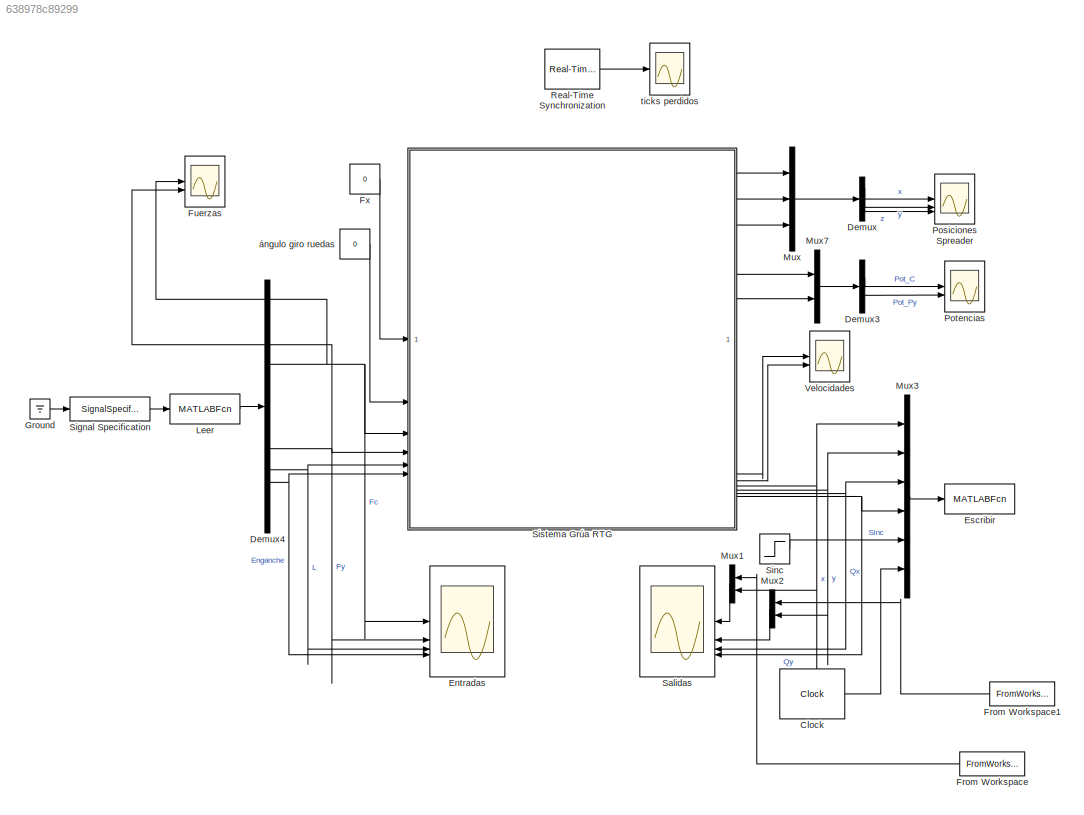
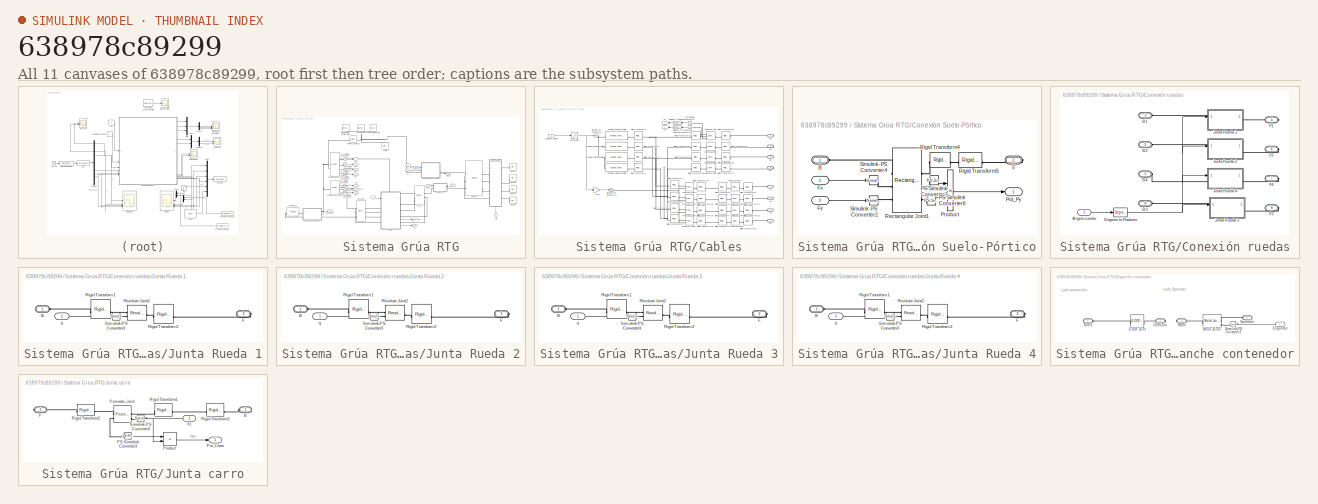
[diagram: thumbnail index - all 11 canvases of the model, root first then tree order]
MODEL slx_638978c89299
KIND model
CONFIG AbsTol = 1e-3
CONFIG EnableMultiTasking = on
CONFIG FixedStep = 0.1
CONFIG MaxStep = auto
CONFIG MinStep = auto
CONFIG RelTol = 1e-3
CONFIG SampleTimeConstraint = Unconstrained
CONFIG SolverName = FixedStepAuto
CONFIG StartTime = 0.0
CONFIG StopTime = 250
BLOCK [Clock] Clock
  Decimation = 1
  DisplayTime = on
BLOCK [Demux] Demux
  Outputs = 3
BLOCK [Demux] Demux3
  Outputs = 2
BLOCK [Demux] Demux4
BLOCK [Scope] Entradas
  Floating = off
  NameLocation = right
  NumInputPorts = 4
  ScopeSpecificationString = Simulink.scopes.TimeScopeBlockCfg('CurrentConfiguration', extmgr.ConfigurationSet(extmgr.Configuration('Core','General UI',true,'FigureColor',[1 1 1]),extmgr.Configuration('Core','Source UI',true),extmgr.Configuration('Sources','WiredSimulink',true,'DataLoggingVariableName','ScopeData1'),extmgr.Configuration('Visuals','Time Domain',true,'SerializedDisplays',{struct('MinYLimReal','-30741.25','MaxYL...<+4185ch>
BLOCK [MATLABFcn] Escribir
  MATLABFcn = EscribirDatos
  OutputDimensions = 0
BLOCK [FromWorkspace] From Workspace
  NameLocation = top
  VariableName = RefXvec
BLOCK [FromWorkspace] From Workspace1
  NameLocation = top
  VariableName = RefYvec
BLOCK [Scope] Fuerzas
  Floating = off
  NameLocation = right
  NumInputPorts = 2
  ScopeSpecificationString = Simulink.scopes.TimeScopeBlockCfg('CurrentConfiguration', extmgr.ConfigurationSet(extmgr.Configuration('Core','General UI',true,'FigureColor',[1 1 1]),extmgr.Configuration('Core','Source UI',true),extmgr.Configuration('Sources','WiredSimulink',true,'DataLoggingVariableName','ScopeData1'),extmgr.Configuration('Visuals','Time Domain',true,'SerializedDisplays',{struct('MinYLimReal','-4025.00000','Max...<+2523ch>
BLOCK [Constant] Fx
  Value = 0
BLOCK [Ground] Ground
BLOCK [MATLABFcn] Leer
  MATLABFcn = LeerDatos()
BLOCK [Mux] Mux
  DisplayOption = bar
  Inputs = 3
BLOCK [Mux] Mux1
  DisplayOption = bar
  Inputs = 2
  NameLocation = top
BLOCK [Mux] Mux2
  DisplayOption = bar
  Inputs = 2
  NameLocation = top
BLOCK [Mux] Mux3
  DisplayOption = bar
  Inputs = 6
BLOCK [Mux] Mux7
  DisplayOption = bar
  Inputs = 2
BLOCK [Scope] Posiciones Spreader
  Floating = off
  NameLocation = right
  NumInputPorts = 3
  ScopeSpecificationString = Simulink.scopes.TimeScopeBlockCfg('CurrentConfiguration', extmgr.ConfigurationSet(extmgr.Configuration('Core','General UI',true,'FigureColor',[1 1 1]),extmgr.Configuration('Core','Source UI',true),extmgr.Configuration('Sources','WiredSimulink',true,'DataLoggingVariableName','ScopeData2'),extmgr.Configuration('Visuals','Time Domain',true,'SerializedDisplays',{struct('MinYLimReal','-1.89451','MaxYLi...<+3879ch>
BLOCK [Scope] Potencias
  Floating = off
  NameLocation = right
  NumInputPorts = 2
  ScopeSpecificationString = Simulink.scopes.TimeScopeBlockCfg('CurrentConfiguration', extmgr.ConfigurationSet(extmgr.Configuration('Core','General UI',true,'FigureColor',[1 1 1]),extmgr.Configuration('Core','Source UI',true),extmgr.Configuration('Sources','WiredSimulink',true,'DataLoggingVariableName','ScopeData1'),extmgr.Configuration('Visuals','Time Domain',true,'SerializedDisplays',{struct('MinYLimReal','-4171.48639','Max...<+2798ch>
BLOCK [Reference] Real-Time Synchronization  REF=sldrtlib/Real-Time
Synchronization
  Commented = on
  SourceBlock = sldrtlib/Real-Time\nSynchronization
  SourceType = Simulink Desktop Real-Time Synchronization
BLOCK [Scope] Salidas
  Floating = off
  NameLocation = left
  NumInputPorts = 4
  ScopeSpecificationString = Simulink.scopes.TimeScopeBlockCfg('CurrentConfiguration', extmgr.ConfigurationSet(extmgr.Configuration('Core','General UI',true,'FigureColor',[1 1 1]),extmgr.Configuration('Core','Source UI',true),extmgr.Configuration('Sources','WiredSimulink',true,'DataLoggingVariableName','ScopeData1'),extmgr.Configuration('Visuals','Time Domain',true,'SerializedDisplays',{struct('MinYLimReal','-1.85623','MaxYLi...<+4261ch>
BLOCK [SignalSpecification] Signal Specification
  SampleTime = 0.1
BLOCK [Step] Sinc
  SampleTime = 0
  Time = 0
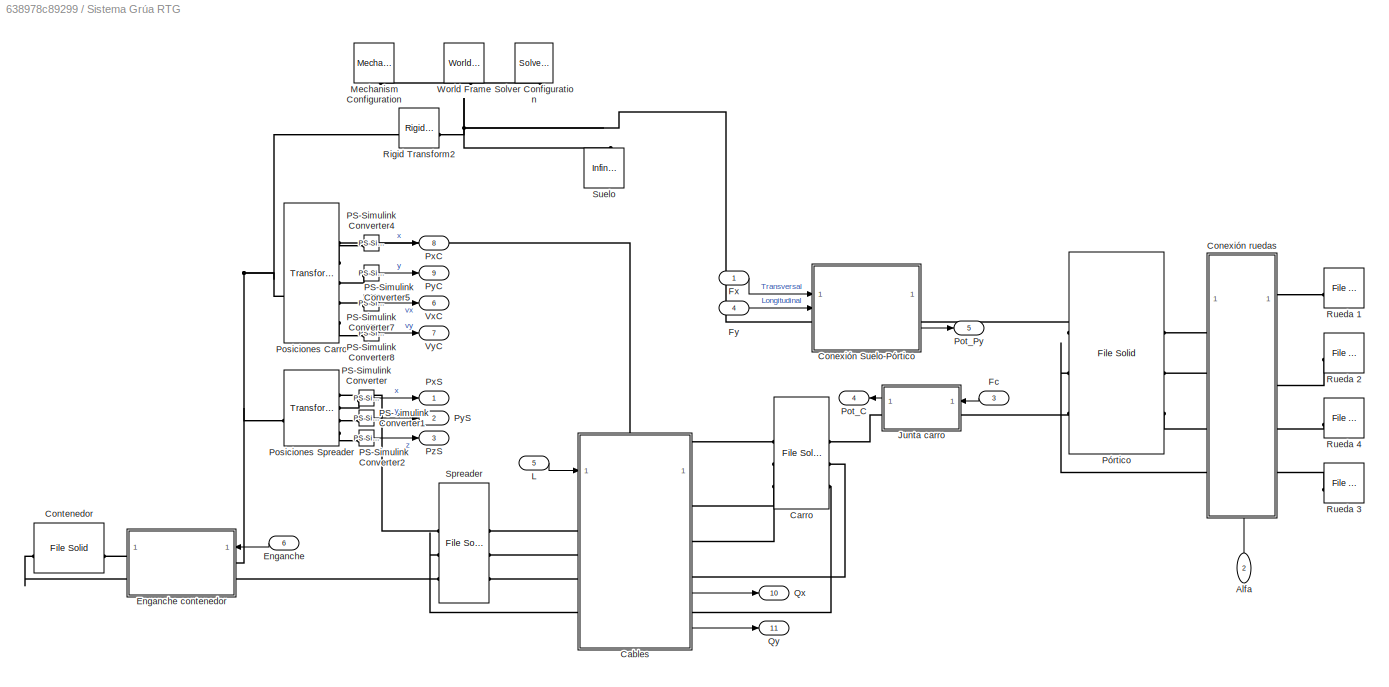
BLOCK [SubSystem] Sistema Grúa RTG
  NameLocation = top
BLOCK [Inport] Sistema Grúa RTG/Alfa
  NameLocation = right
  Port = 2
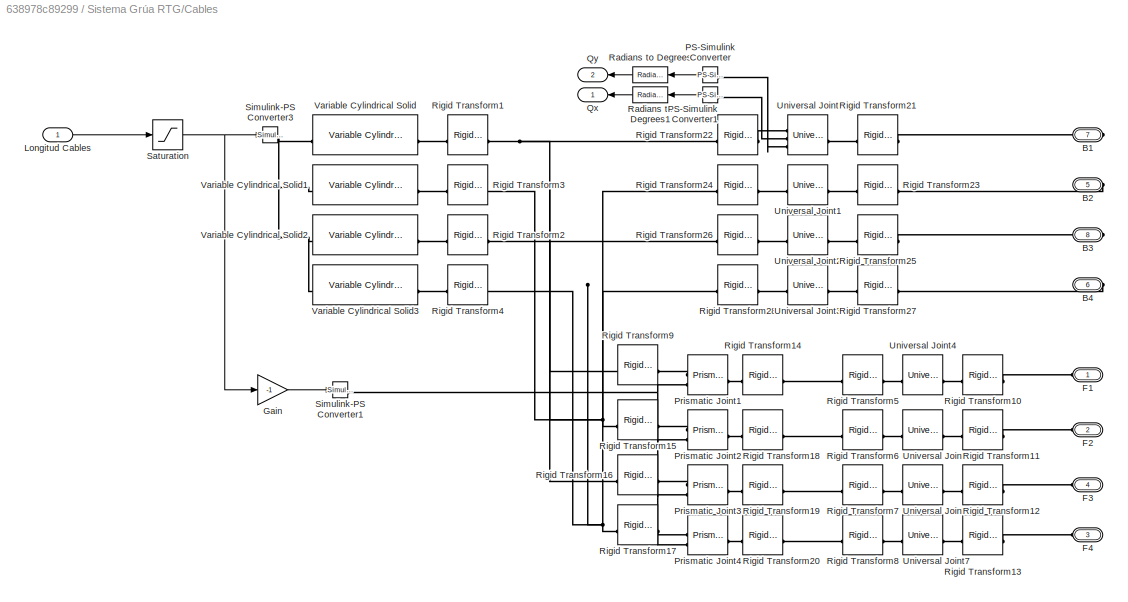
BLOCK [SubSystem] Sistema Grúa RTG/Cables
  PortSchema = {"entries":[{"content":{"sides":[{"content":{"connectorIds":["In1","LConn1","LConn2","LConn3","LConn4"]},"type":"ConnectorPlacement.EquallySpacedRectSide","uuid":"ec984c7e-e1d1-4181-a563-1208227983a4"},{"content":{"connectorIds":["RConn1","RConn2","RConn3","RConn4","Out1","Out2"],"side":"RIGHT"},"type":"ConnectorPlacement.EquallySpacedRectSide","uuid":"cac8f856-ea24-476a-83a0-5dfdb24fe635"},{"cont...<+319ch>
BLOCK [PMIOPort] Sistema Grúa RTG/Cables/B1
  Port = 7
  Side = Right
BLOCK [PMIOPort] Sistema Grúa RTG/Cables/B2
  Port = 5
  Side = Right
BLOCK [PMIOPort] Sistema Grúa RTG/Cables/B3
  Port = 8
  Side = Right
BLOCK [PMIOPort] Sistema Grúa RTG/Cables/B4
  Port = 6
  Side = Right
BLOCK [PMIOPort] Sistema Grúa RTG/Cables/F1
  Side = Left
BLOCK [PMIOPort] Sistema Grúa RTG/Cables/F2
  Port = 2
  Side = Left
BLOCK [PMIOPort] Sistema Grúa RTG/Cables/F3
  Port = 4
  Side = Left
BLOCK [PMIOPort] Sistema Grúa RTG/Cables/F4
  Port = 3
  Side = Left
BLOCK [Gain] Sistema Grúa RTG/Cables/Gain
  Gain = -1
BLOCK [Inport] Sistema Grúa RTG/Cables/Longitud Cables
BLOCK [Reference] Sistema Grúa RTG/Cables/PS-Simulink Converter  REF=nesl_utility/PS-Simulink
Converter
  NameLocation = top
  SourceBlock = nesl_utility/PS-Simulink\nConverter
  SourceType = PS-Simulink\nConverter
BLOCK [Reference] Sistema Grúa RTG/Cables/PS-Simulink Converter1  REF=nesl_utility/PS-Simulink
Converter
  NameLocation = top
  SourceBlock = nesl_utility/PS-Simulink\nConverter
  SourceType = PS-Simulink\nConverter
BLOCK [Reference] Sistema Grúa RTG/Cables/Prismatic Joint1  REF=sm_lib/Joints/Prismatic
Joint
  SourceBlock = sm_lib/Joints/Prismatic\nJoint
  SourceType = Prismatic\nJoint
BLOCK [Reference] Sistema Grúa RTG/Cables/Prismatic Joint2  REF=sm_lib/Joints/Prismatic
Joint
  SourceBlock = sm_lib/Joints/Prismatic\nJoint
  SourceType = Prismatic\nJoint
BLOCK [Reference] Sistema Grúa RTG/Cables/Prismatic Joint3  REF=sm_lib/Joints/Prismatic
Joint
  SourceBlock = sm_lib/Joints/Prismatic\nJoint
  SourceType = Prismatic\nJoint
BLOCK [Reference] Sistema Grúa RTG/Cables/Prismatic Joint4  REF=sm_lib/Joints/Prismatic
Joint
  SourceBlock = sm_lib/Joints/Prismatic\nJoint
  SourceType = Prismatic\nJoint
BLOCK [Outport] Sistema Grúa RTG/Cables/Qx
  NameLocation = left
BLOCK [Outport] Sistema Grúa RTG/Cables/Qy
  NameLocation = left
  Port = 2
BLOCK [Reference] Sistema Grúa RTG/Cables/Radians to Degrees  REF=simulink_extras/Transformations/Radians
to Degrees
  NameLocation = top
  SourceBlock = simulink_extras/Transformations/Radians\nto Degrees
  SourceType = RadiansToDegrees
BLOCK [Reference] Sistema Grúa RTG/Cables/Radians to Degrees1  REF=simulink_extras/Transformations/Radians
to Degrees
  NameLocation = top
  SourceBlock = simulink_extras/Transformations/Radians\nto Degrees
  SourceType = RadiansToDegrees
BLOCK [Reference] Sistema Grúa RTG/Cables/Rigid Transform1  REF=sm_lib/Frames and
Transforms/Rigid
Transform
  SourceBlock = sm_lib/Frames and\nTransforms/Rigid\nTransform
  SourceType = Rigid\nTransform
BLOCK [Reference] Sistema Grúa RTG/Cables/Rigid Transform10  REF=sm_lib/Frames and
Transforms/Rigid
Transform
  SourceBlock = sm_lib/Frames and\nTransforms/Rigid\nTransform
  SourceType = Rigid\nTransform
BLOCK [Reference] Sistema Grúa RTG/Cables/Rigid Transform11  REF=sm_lib/Frames and
Transforms/Rigid
Transform
  SourceBlock = sm_lib/Frames and\nTransforms/Rigid\nTransform
  SourceType = Rigid\nTransform
BLOCK [Reference] Sistema Grúa RTG/Cables/Rigid Transform12  REF=sm_lib/Frames and
Transforms/Rigid
Transform
  SourceBlock = sm_lib/Frames and\nTransforms/Rigid\nTransform
  SourceType = Rigid\nTransform
BLOCK [Reference] Sistema Grúa RTG/Cables/Rigid Transform13  REF=sm_lib/Frames and
Transforms/Rigid
Transform
  SourceBlock = sm_lib/Frames and\nTransforms/Rigid\nTransform
  SourceType = Rigid\nTransform
BLOCK [Reference] Sistema Grúa RTG/Cables/Rigid Transform14  REF=sm_lib/Frames and
Transforms/Rigid
Transform
  SourceBlock = sm_lib/Frames and\nTransforms/Rigid\nTransform
  SourceType = Rigid\nTransform
BLOCK [Reference] Sistema Grúa RTG/Cables/Rigid Transform15  REF=sm_lib/Frames and
Transforms/Rigid
Transform
  SourceBlock = sm_lib/Frames and\nTransforms/Rigid\nTransform
  SourceType = Rigid\nTransform
BLOCK [Reference] Sistema Grúa RTG/Cables/Rigid Transform16  REF=sm_lib/Frames and
Transforms/Rigid
Transform
  SourceBlock = sm_lib/Frames and\nTransforms/Rigid\nTransform
  SourceType = Rigid\nTransform
BLOCK [Reference] Sistema Grúa RTG/Cables/Rigid Transform17  REF=sm_lib/Frames and
Transforms/Rigid
Transform
  SourceBlock = sm_lib/Frames and\nTransforms/Rigid\nTransform
  SourceType = Rigid\nTransform
BLOCK [Reference] Sistema Grúa RTG/Cables/Rigid Transform18  REF=sm_lib/Frames and
Transforms/Rigid
Transform
  SourceBlock = sm_lib/Frames and\nTransforms/Rigid\nTransform
  SourceType = Rigid\nTransform
BLOCK [Reference] Sistema Grúa RTG/Cables/Rigid Transform19  REF=sm_lib/Frames and
Transforms/Rigid
Transform
  SourceBlock = sm_lib/Frames and\nTransforms/Rigid\nTransform
  SourceType = Rigid\nTransform
BLOCK [Reference] Sistema Grúa RTG/Cables/Rigid Transform2  REF=sm_lib/Frames and
Transforms/Rigid
Transform
  SourceBlock = sm_lib/Frames and\nTransforms/Rigid\nTransform
  SourceType = Rigid\nTransform
BLOCK [Reference] Sistema Grúa RTG/Cables/Rigid Transform20  REF=sm_lib/Frames and
Transforms/Rigid
Transform
  SourceBlock = sm_lib/Frames and\nTransforms/Rigid\nTransform
  SourceType = Rigid\nTransform
BLOCK [Reference] Sistema Grúa RTG/Cables/Rigid Transform21  REF=sm_lib/Frames and
Transforms/Rigid
Transform
  NameLocation = top
  SourceBlock = sm_lib/Frames and\nTransforms/Rigid\nTransform
  SourceType = Rigid\nTransform
BLOCK [Reference] Sistema Grúa RTG/Cables/Rigid Transform22  REF=sm_lib/Frames and
Transforms/Rigid
Transform
  NameLocation = top
  SourceBlock = sm_lib/Frames and\nTransforms/Rigid\nTransform
  SourceType = Rigid\nTransform
BLOCK [Reference] Sistema Grúa RTG/Cables/Rigid Transform23  REF=sm_lib/Frames and
Transforms/Rigid
Transform
  NameLocation = top
  SourceBlock = sm_lib/Frames and\nTransforms/Rigid\nTransform
  SourceType = Rigid\nTransform
BLOCK [Reference] Sistema Grúa RTG/Cables/Rigid Transform24  REF=sm_lib/Frames and
Transforms/Rigid
Transform
  NameLocation = top
  SourceBlock = sm_lib/Frames and\nTransforms/Rigid\nTransform
  SourceType = Rigid\nTransform
BLOCK [Reference] Sistema Grúa RTG/Cables/Rigid Transform25  REF=sm_lib/Frames and
Transforms/Rigid
Transform
  NameLocation = left
  SourceBlock = sm_lib/Frames and\nTransforms/Rigid\nTransform
  SourceType = Rigid\nTransform
BLOCK [Reference] Sistema Grúa RTG/Cables/Rigid Transform26  REF=sm_lib/Frames and
Transforms/Rigid
Transform
  NameLocation = top
  SourceBlock = sm_lib/Frames and\nTransforms/Rigid\nTransform
  SourceType = Rigid\nTransform
BLOCK [Reference] Sistema Grúa RTG/Cables/Rigid Transform27  REF=sm_lib/Frames and
Transforms/Rigid
Transform
  NameLocation = top
  SourceBlock = sm_lib/Frames and\nTransforms/Rigid\nTransform
  SourceType = Rigid\nTransform
BLOCK [Reference] Sistema Grúa RTG/Cables/Rigid Transform28  REF=sm_lib/Frames and
Transforms/Rigid
Transform
  NameLocation = top
  SourceBlock = sm_lib/Frames and\nTransforms/Rigid\nTransform
  SourceType = Rigid\nTransform
BLOCK [Reference] Sistema Grúa RTG/Cables/Rigid Transform3  REF=sm_lib/Frames and
Transforms/Rigid
Transform
  SourceBlock = sm_lib/Frames and\nTransforms/Rigid\nTransform
  SourceType = Rigid\nTransform
BLOCK [Reference] Sistema Grúa RTG/Cables/Rigid Transform4  REF=sm_lib/Frames and
Transforms/Rigid
Transform
  SourceBlock = sm_lib/Frames and\nTransforms/Rigid\nTransform
  SourceType = Rigid\nTransform
BLOCK [Reference] Sistema Grúa RTG/Cables/Rigid Transform5  REF=sm_lib/Frames and
Transforms/Rigid
Transform
  SourceBlock = sm_lib/Frames and\nTransforms/Rigid\nTransform
  SourceType = Rigid\nTransform
BLOCK [Reference] Sistema Grúa RTG/Cables/Rigid Transform6  REF=sm_lib/Frames and
Transforms/Rigid
Transform
  SourceBlock = sm_lib/Frames and\nTransforms/Rigid\nTransform
  SourceType = Rigid\nTransform
BLOCK [Reference] Sistema Grúa RTG/Cables/Rigid Transform7  REF=sm_lib/Frames and
Transforms/Rigid
Transform
  SourceBlock = sm_lib/Frames and\nTransforms/Rigid\nTransform
  SourceType = Rigid\nTransform
BLOCK [Reference] Sistema Grúa RTG/Cables/Rigid Transform8  REF=sm_lib/Frames and
Transforms/Rigid
Transform
  SourceBlock = sm_lib/Frames and\nTransforms/Rigid\nTransform
  SourceType = Rigid\nTransform
BLOCK [Reference] Sistema Grúa RTG/Cables/Rigid Transform9  REF=sm_lib/Frames and
Transforms/Rigid
Transform
  SourceBlock = sm_lib/Frames and\nTransforms/Rigid\nTransform
  SourceType = Rigid\nTransform
BLOCK [Saturate] Sistema Grúa RTG/Cables/Saturation
  LowerLimit = 1
  UpperLimit = 18
BLOCK [Reference] Sistema Grúa RTG/Cables/Simulink-PS Converter1  REF=nesl_utility/Simulink-PS
Converter
  SourceBlock = nesl_utility/Simulink-PS\nConverter
  SourceType = Simulink-PS\nConverter
BLOCK [Reference] Sistema Grúa RTG/Cables/Simulink-PS Converter3  REF=nesl_utility/Simulink-PS
Converter
  SourceBlock = nesl_utility/Simulink-PS\nConverter
  SourceType = Simulink-PS\nConverter
BLOCK [Reference] Sistema Grúa RTG/Cables/Universal Joint  REF=sm_lib/Joints/Universal
Joint
  NameLocation = top
  SourceBlock = sm_lib/Joints/Universal\nJoint
  SourceType = Universal\nJoint
BLOCK [Reference] Sistema Grúa RTG/Cables/Universal Joint1  REF=sm_lib/Joints/Universal
Joint
  NameLocation = top
  SourceBlock = sm_lib/Joints/Universal\nJoint
  SourceType = Universal\nJoint
BLOCK [Reference] Sistema Grúa RTG/Cables/Universal Joint2  REF=sm_lib/Joints/Universal
Joint
  NameLocation = top
  SourceBlock = sm_lib/Joints/Universal\nJoint
  SourceType = Universal\nJoint
BLOCK [Reference] Sistema Grúa RTG/Cables/Universal Joint3  REF=sm_lib/Joints/Universal
Joint
  NameLocation = top
  SourceBlock = sm_lib/Joints/Universal\nJoint
  SourceType = Universal\nJoint
BLOCK [Reference] Sistema Grúa RTG/Cables/Universal Joint4  REF=sm_lib/Joints/Universal
Joint
  NameLocation = top
  SourceBlock = sm_lib/Joints/Universal\nJoint
  SourceType = Universal\nJoint
BLOCK [Reference] Sistema Grúa RTG/Cables/Universal Joint5  REF=sm_lib/Joints/Universal
Joint
  NameLocation = top
  SourceBlock = sm_lib/Joints/Universal\nJoint
  SourceType = Universal\nJoint
BLOCK [Reference] Sistema Grúa RTG/Cables/Universal Joint6  REF=sm_lib/Joints/Universal
Joint
  NameLocation = top
  SourceBlock = sm_lib/Joints/Universal\nJoint
  SourceType = Universal\nJoint
BLOCK [Reference] Sistema Grúa RTG/Cables/Universal Joint7  REF=sm_lib/Joints/Universal
Joint
  SourceBlock = sm_lib/Joints/Universal\nJoint
  SourceType = Universal\nJoint
BLOCK [Reference] Sistema Grúa RTG/Cables/Variable Cylindrical Solid  REF=sm_lib/Body Elements/Variable Mass/Variable
Cylindrical Solid
  SourceBlock = sm_lib/Body Elements/Variable Mass/Variable\nCylindrical Solid
  SourceType = Variable\nCylindrical Solid
BLOCK [Reference] Sistema Grúa RTG/Cables/Variable Cylindrical Solid1  REF=sm_lib/Body Elements/Variable Mass/Variable
Cylindrical Solid
  SourceBlock = sm_lib/Body Elements/Variable Mass/Variable\nCylindrical Solid
  SourceType = Variable\nCylindrical Solid
BLOCK [Reference] Sistema Grúa RTG/Cables/Variable Cylindrical Solid2  REF=sm_lib/Body Elements/Variable Mass/Variable
Cylindrical Solid
  SourceBlock = sm_lib/Body Elements/Variable Mass/Variable\nCylindrical Solid
  SourceType = Variable\nCylindrical Solid
BLOCK [Reference] Sistema Grúa RTG/Cables/Variable Cylindrical Solid3  REF=sm_lib/Body Elements/Variable Mass/Variable
Cylindrical Solid
  SourceBlock = sm_lib/Body Elements/Variable Mass/Variable\nCylindrical Solid
  SourceType = Variable\nCylindrical Solid
BLOCK [Reference] Sistema Grúa RTG/Carro  REF=sm_lib/Body Elements/File Solid
  NameLocation = top
  SourceBlock = sm_lib/Body Elements/File Solid
  SourceType = File Solid
BLOCK [SubSystem] Sistema Grúa RTG/Conexión Suelo-Pórtico
  PortSchema = {"entries":[{"content":{"sides":[{"content":{"connectorIds":["In1","In2","LConn1"]},"type":"ConnectorPlacement.EquallySpacedRectSide","uuid":"2e0480fc-2d3f-4dcb-8bb8-e0bace2fb1ed"},{"content":{"connectorIds":["RConn1","Out1"],"side":"RIGHT"},"type":"ConnectorPlacement.EquallySpacedRectSide","uuid":"bb84a08e-7cd2-4a79-8358-0108e712e2f6"},{"content":{"connectorIds":[],"side":"TOP"},"type":"Connector...<+264ch>
BLOCK [PMIOPort] Sistema Grúa RTG/Conexión Suelo-Pórtico/B
  Side = Left
BLOCK [PMIOPort] Sistema Grúa RTG/Conexión Suelo-Pórtico/F
  Port = 2
  Side = Right
BLOCK [Inport] Sistema Grúa RTG/Conexión Suelo-Pórtico/Fx
BLOCK [Inport] Sistema Grúa RTG/Conexión Suelo-Pórtico/Fy
  Port = 2
BLOCK [Reference] Sistema Grúa RTG/Conexión Suelo-Pórtico/PS-Simulink Converter3  REF=nesl_utility/PS-Simulink
Converter
  SourceBlock = nesl_utility/PS-Simulink\nConverter
  SourceType = PS-Simulink\nConverter
BLOCK [Reference] Sistema Grúa RTG/Conexión Suelo-Pórtico/PS-Simulink Converter6  REF=nesl_utility/PS-Simulink
Converter
  SourceBlock = nesl_utility/PS-Simulink\nConverter
  SourceType = PS-Simulink\nConverter
BLOCK [Outport] Sistema Grúa RTG/Conexión Suelo-Pórtico/Pot_Py
BLOCK [Product] Sistema Grúa RTG/Conexión Suelo-Pórtico/Product
BLOCK [Reference] Sistema Grúa RTG/Conexión Suelo-Pórtico/Rectangular Joint1  REF=sm_lib/Joints/Rectangular
Joint
  NameLocation = top
  SourceBlock = sm_lib/Joints/Rectangular\nJoint
  SourceType = Rectangular\nJoint
BLOCK [Reference] Sistema Grúa RTG/Conexión Suelo-Pórtico/Rigid Transform4  REF=sm_lib/Frames and
Transforms/Rigid
Transform
  NameLocation = top
  SourceBlock = sm_lib/Frames and\nTransforms/Rigid\nTransform
  SourceType = Rigid\nTransform
BLOCK [Reference] Sistema Grúa RTG/Conexión Suelo-Pórtico/Rigid Transform5  REF=sm_lib/Frames and
Transforms/Rigid
Transform
  NameLocation = top
  SourceBlock = sm_lib/Frames and\nTransforms/Rigid\nTransform
  SourceType = Rigid\nTransform
BLOCK [Reference] Sistema Grúa RTG/Conexión Suelo-Pórtico/Simulink-PS Converter2  REF=nesl_utility/Simulink-PS
Converter
  SourceBlock = nesl_utility/Simulink-PS\nConverter
  SourceType = Simulink-PS\nConverter
BLOCK [Reference] Sistema Grúa RTG/Conexión Suelo-Pórtico/Simulink-PS Converter4  REF=nesl_utility/Simulink-PS
Converter
  SourceBlock = nesl_utility/Simulink-PS\nConverter
  SourceType = Simulink-PS\nConverter
BLOCK [SubSystem] Sistema Grúa RTG/Conexión ruedas
  NameLocation = top
  PortSchema = {"entries":[{"content":{"sides":[{"content":{"connectorIds":["LConn1","LConn2","LConn3","LConn4"]},"type":"ConnectorPlacement.EquallySpacedRectSide","uuid":"ecfda100-e739-4f1c-94c0-80bec1584046"},{"content":{"connectorIds":["RConn1","RConn2","RConn3","RConn4"],"side":"RIGHT"},"type":"ConnectorPlacement.EquallySpacedRectSide","uuid":"5c64e617-bec3-4d66-a823-06a5171e74eb"},{"content":{"connectorIds"...<+448ch>
BLOCK [PMIOPort] Sistema Grúa RTG/Conexión ruedas/B1
  Side = Left
BLOCK [PMIOPort] Sistema Grúa RTG/Conexión ruedas/B2
  Port = 2
  Side = Left
BLOCK [PMIOPort] Sistema Grúa RTG/Conexión ruedas/B3
  NameLocation = top
  Port = 4
  Side = Left
BLOCK [PMIOPort] Sistema Grúa RTG/Conexión ruedas/B4
  Port = 3
  Side = Left
BLOCK [Reference] Sistema Grúa RTG/Conexión ruedas/Degrees to Radians  REF=simulink_extras/Transformations/Degrees to
Radians
  SourceBlock = simulink_extras/Transformations/Degrees to\nRadians
  SourceType = DegreesToRadians
BLOCK [PMIOPort] Sistema Grúa RTG/Conexión ruedas/F1
  Port = 5
  Side = Right
BLOCK [PMIOPort] Sistema Grúa RTG/Conexión ruedas/F2
  Port = 6
  Side = Right
BLOCK [PMIOPort] Sistema Grúa RTG/Conexión ruedas/F3
  Port = 8
  Side = Right
BLOCK [PMIOPort] Sistema Grúa RTG/Conexión ruedas/F4
  Port = 7
  Side = Right
BLOCK [SubSystem] Sistema Grúa RTG/Conexión ruedas/Junta Rueda 1
  PortSchema = {"entries":[{"content":{"sides":[{"content":{"connectorIds":["LConn1","In1"]},"type":"ConnectorPlacement.EquallySpacedRectSide","uuid":"f0e46341-b390-4c6c-beb3-e4f900ccbffb"},{"content":{"connectorIds":["RConn1"],"side":"RIGHT"},"type":"ConnectorPlacement.EquallySpacedRectSide","uuid":"2d256e19-6c3b-4e7c-aef3-5839dee41e50"},{"content":{"connectorIds":[],"side":"TOP"},"type":"ConnectorPlacement.Equ...<+251ch>  <repeated x4 — deduplicated; at blocks: Junta Rueda 1, Junta Rueda 2, Junta Rueda 3, Junta Rueda 4>
BLOCK [PMIOPort] Sistema Grúa RTG/Conexión ruedas/Junta Rueda 1/B
  Side = Left
BLOCK [PMIOPort] Sistema Grúa RTG/Conexión ruedas/Junta Rueda 1/F
  Port = 2
  Side = Right
BLOCK [Reference] Sistema Grúa RTG/Conexión ruedas/Junta Rueda 1/Revolute Joint2  REF=sm_lib/Joints/Revolute Joint
  SourceBlock = sm_lib/Joints/Revolute Joint
  SourceType = Revolute Joint
BLOCK [Reference] Sistema Grúa RTG/Conexión ruedas/Junta Rueda 1/Rigid Transform1  REF=sm_lib/Frames and
Transforms/Rigid
Transform
  SourceBlock = sm_lib/Frames and\nTransforms/Rigid\nTransform
  SourceType = Rigid\nTransform
BLOCK [Reference] Sistema Grúa RTG/Conexión ruedas/Junta Rueda 1/Rigid Transform2  REF=sm_lib/Frames and
Transforms/Rigid
Transform
  SourceBlock = sm_lib/Frames and\nTransforms/Rigid\nTransform
  SourceType = Rigid\nTransform
BLOCK [Reference] Sistema Grúa RTG/Conexión ruedas/Junta Rueda 1/Simulink-PS Converter3  REF=nesl_utility/Simulink-PS
Converter
  SourceBlock = nesl_utility/Simulink-PS\nConverter
  SourceType = Simulink-PS\nConverter
BLOCK [Inport] Sistema Grúa RTG/Conexión ruedas/Junta Rueda 1/q
BLOCK [SubSystem] Sistema Grúa RTG/Conexión ruedas/Junta Rueda 2
BLOCK [PMIOPort] Sistema Grúa RTG/Conexión ruedas/Junta Rueda 2/B
  Side = Left
BLOCK [PMIOPort] Sistema Grúa RTG/Conexión ruedas/Junta Rueda 2/F
  Port = 2
  Side = Right
BLOCK [Reference] Sistema Grúa RTG/Conexión ruedas/Junta Rueda 2/Revolute Joint2  REF=sm_lib/Joints/Revolute Joint
  SourceBlock = sm_lib/Joints/Revolute Joint
  SourceType = Revolute Joint
BLOCK [Reference] Sistema Grúa RTG/Conexión ruedas/Junta Rueda 2/Rigid Transform1  REF=sm_lib/Frames and
Transforms/Rigid
Transform
  SourceBlock = sm_lib/Frames and\nTransforms/Rigid\nTransform
  SourceType = Rigid\nTransform
BLOCK [Reference] Sistema Grúa RTG/Conexión ruedas/Junta Rueda 2/Rigid Transform2  REF=sm_lib/Frames and
Transforms/Rigid
Transform
  SourceBlock = sm_lib/Frames and\nTransforms/Rigid\nTransform
  SourceType = Rigid\nTransform
BLOCK [Reference] Sistema Grúa RTG/Conexión ruedas/Junta Rueda 2/Simulink-PS Converter3  REF=nesl_utility/Simulink-PS
Converter
  SourceBlock = nesl_utility/Simulink-PS\nConverter
  SourceType = Simulink-PS\nConverter
BLOCK [Inport] Sistema Grúa RTG/Conexión ruedas/Junta Rueda 2/q
BLOCK [SubSystem] Sistema Grúa RTG/Conexión ruedas/Junta Rueda 3
BLOCK [PMIOPort] Sistema Grúa RTG/Conexión ruedas/Junta Rueda 3/B
  Side = Left
BLOCK [PMIOPort] Sistema Grúa RTG/Conexión ruedas/Junta Rueda 3/F
  Port = 2
  Side = Right
BLOCK [Reference] Sistema Grúa RTG/Conexión ruedas/Junta Rueda 3/Revolute Joint2  REF=sm_lib/Joints/Revolute Joint
  SourceBlock = sm_lib/Joints/Revolute Joint
  SourceType = Revolute Joint
BLOCK [Reference] Sistema Grúa RTG/Conexión ruedas/Junta Rueda 3/Rigid Transform1  REF=sm_lib/Frames and
Transforms/Rigid
Transform
  SourceBlock = sm_lib/Frames and\nTransforms/Rigid\nTransform
  SourceType = Rigid\nTransform
BLOCK [Reference] Sistema Grúa RTG/Conexión ruedas/Junta Rueda 3/Rigid Transform2  REF=sm_lib/Frames and
Transforms/Rigid
Transform
  SourceBlock = sm_lib/Frames and\nTransforms/Rigid\nTransform
  SourceType = Rigid\nTransform
BLOCK [Reference] Sistema Grúa RTG/Conexión ruedas/Junta Rueda 3/Simulink-PS Converter3  REF=nesl_utility/Simulink-PS
Converter
  SourceBlock = nesl_utility/Simulink-PS\nConverter
  SourceType = Simulink-PS\nConverter
BLOCK [Inport] Sistema Grúa RTG/Conexión ruedas/Junta Rueda 3/q
BLOCK [SubSystem] Sistema Grúa RTG/Conexión ruedas/Junta Rueda 4
BLOCK [PMIOPort] Sistema Grúa RTG/Conexión ruedas/Junta Rueda 4/B
  Side = Left
BLOCK [PMIOPort] Sistema Grúa RTG/Conexión ruedas/Junta Rueda 4/F
  Port = 2
  Side = Right
BLOCK [Reference] Sistema Grúa RTG/Conexión ruedas/Junta Rueda 4/Revolute Joint2  REF=sm_lib/Joints/Revolute Joint
  SourceBlock = sm_lib/Joints/Revolute Joint
  SourceType = Revolute Joint
BLOCK [Reference] Sistema Grúa RTG/Conexión ruedas/Junta Rueda 4/Rigid Transform1  REF=sm_lib/Frames and
Transforms/Rigid
Transform
  SourceBlock = sm_lib/Frames and\nTransforms/Rigid\nTransform
  SourceType = Rigid\nTransform
BLOCK [Reference] Sistema Grúa RTG/Conexión ruedas/Junta Rueda 4/Rigid Transform2  REF=sm_lib/Frames and
Transforms/Rigid
Transform
  SourceBlock = sm_lib/Frames and\nTransforms/Rigid\nTransform
  SourceType = Rigid\nTransform
BLOCK [Reference] Sistema Grúa RTG/Conexión ruedas/Junta Rueda 4/Simulink-PS Converter3  REF=nesl_utility/Simulink-PS
Converter
  SourceBlock = nesl_utility/Simulink-PS\nConverter
  SourceType = Simulink-PS\nConverter
BLOCK [Inport] Sistema Grúa RTG/Conexión ruedas/Junta Rueda 4/q
BLOCK [Inport] Sistema Grúa RTG/Conexión ruedas/Ángulo ruedas
BLOCK [Reference] Sistema Grúa RTG/Contenedor  REF=sm_lib/Body Elements/File Solid
  NameLocation = top
  SourceBlock = sm_lib/Body Elements/File Solid
  SourceType = File Solid
BLOCK [Inport] Sistema Grúa RTG/Enganche
  NameLocation = top
  Port = 6
BLOCK [SubSystem] Sistema Grúa RTG/Enganche contenedor
BLOCK [Reference] Sistema Grúa RTG/Enganche contenedor/6-DOF Joint  REF=sm_lib/Joints/6-DOF Joint
  SourceBlock = sm_lib/Joints/6-DOF Joint
  SourceType = 6-DOF Joint
BLOCK [PMIOPort] Sistema Grúa RTG/Enganche contenedor/CentCont
  NameLocation = top
  Port = 4
  Side = Right
BLOCK [Inport] Sistema Grúa RTG/Enganche contenedor/Enganche
  NameLocation = top
BLOCK [PMIOPort] Sistema Grúa RTG/Enganche contenedor/Rcont
  NameLocation = top
  Port = 3
  Side = Right
BLOCK [Reference] Sistema Grúa RTG/Enganche contenedor/Simulink-PS Converter3  REF=nesl_utility/Simulink-PS
Converter
  NameLocation = top
  SourceBlock = nesl_utility/Simulink-PS\nConverter
  SourceType = Simulink-PS\nConverter
BLOCK [PMIOPort] Sistema Grúa RTG/Enganche contenedor/Spreader
  NameLocation = top
  Port = 2
  Side = Left
BLOCK [PMIOPort] Sistema Grúa RTG/Enganche contenedor/Suelo
  NameLocation = top
  Side = Left
BLOCK [Reference] Sistema Grúa RTG/Enganche contenedor/Weld Joint2  REF=sm_lib/Joints/Weld Joint
  SourceBlock = sm_lib/Joints/Weld Joint
  SourceType = Weld Joint
BLOCK [Inport] Sistema Grúa RTG/Fc
  NameLocation = top
  Port = 3
BLOCK [Inport] Sistema Grúa RTG/Fx
BLOCK [Inport] Sistema Grúa RTG/Fy
  Port = 4
BLOCK [SubSystem] Sistema Grúa RTG/Junta carro
  NameLocation = top
BLOCK [PMIOPort] Sistema Grúa RTG/Junta carro/B
  Side = Left
BLOCK [PMIOPort] Sistema Grúa RTG/Junta carro/F
  Port = 2
  Side = Right
BLOCK [Inport] Sistema Grúa RTG/Junta carro/Fc
BLOCK [Reference] Sistema Grúa RTG/Junta carro/PS-Simulink Converter3  REF=nesl_utility/PS-Simulink
Converter
  SourceBlock = nesl_utility/PS-Simulink\nConverter
  SourceType = PS-Simulink\nConverter
BLOCK [Outport] Sistema Grúa RTG/Junta carro/Pot_Carro
BLOCK [Reference] Sistema Grúa RTG/Junta carro/Prismatic Joint  REF=sm_lib/Joints/Prismatic
Joint
  NameLocation = top
  SourceBlock = sm_lib/Joints/Prismatic\nJoint
  SourceType = Prismatic\nJoint
BLOCK [Product] Sistema Grúa RTG/Junta carro/Product
BLOCK [Reference] Sistema Grúa RTG/Junta carro/Rigid Transform1  REF=sm_lib/Frames and
Transforms/Rigid
Transform
  NameLocation = top
  SourceBlock = sm_lib/Frames and\nTransforms/Rigid\nTransform
  SourceType = Rigid\nTransform
BLOCK [Reference] Sistema Grúa RTG/Junta carro/Rigid Transform2  REF=sm_lib/Frames and
Transforms/Rigid
Transform
  NameLocation = top
  SourceBlock = sm_lib/Frames and\nTransforms/Rigid\nTransform
  SourceType = Rigid\nTransform
BLOCK [Reference] Sistema Grúa RTG/Junta carro/Rigid Transform3  REF=sm_lib/Frames and
Transforms/Rigid
Transform
  NameLocation = top
  SourceBlock = sm_lib/Frames and\nTransforms/Rigid\nTransform
  SourceType = Rigid\nTransform
BLOCK [Reference] Sistema Grúa RTG/Junta carro/Simulink-PS Converter3  REF=nesl_utility/Simulink-PS
Converter
  NameLocation = top
  SourceBlock = nesl_utility/Simulink-PS\nConverter
  SourceType = Simulink-PS\nConverter
BLOCK [Inport] Sistema Grúa RTG/L
  Port = 5
BLOCK [Reference] Sistema Grúa RTG/Mechanism Configuration  REF=sm_lib/Utilities/Mechanism
Configuration
  NameLocation = left
  SourceBlock = sm_lib/Utilities/Mechanism\nConfiguration
  SourceType = Mechanism\nConfiguration
BLOCK [Reference] Sistema Grúa RTG/PS-Simulink Converter  REF=nesl_utility/PS-Simulink
Converter
  SourceBlock = nesl_utility/PS-Simulink\nConverter
  SourceType = PS-Simulink\nConverter
BLOCK [Reference] Sistema Grúa RTG/PS-Simulink Converter1  REF=nesl_utility/PS-Simulink
Converter
  SourceBlock = nesl_utility/PS-Simulink\nConverter
  SourceType = PS-Simulink\nConverter
BLOCK [Reference] Sistema Grúa RTG/PS-Simulink Converter2  REF=nesl_utility/PS-Simulink
Converter
  SourceBlock = nesl_utility/PS-Simulink\nConverter
  SourceType = PS-Simulink\nConverter
BLOCK [Reference] Sistema Grúa RTG/PS-Simulink Converter4  REF=nesl_utility/PS-Simulink
Converter
  SourceBlock = nesl_utility/PS-Simulink\nConverter
  SourceType = PS-Simulink\nConverter
BLOCK [Reference] Sistema Grúa RTG/PS-Simulink Converter5  REF=nesl_utility/PS-Simulink
Converter
  SourceBlock = nesl_utility/PS-Simulink\nConverter
  SourceType = PS-Simulink\nConverter
BLOCK [Reference] Sistema Grúa RTG/PS-Simulink Converter7  REF=nesl_utility/PS-Simulink
Converter
  SourceBlock = nesl_utility/PS-Simulink\nConverter
  SourceType = PS-Simulink\nConverter
BLOCK [Reference] Sistema Grúa RTG/PS-Simulink Converter8  REF=nesl_utility/PS-Simulink
Converter
  SourceBlock = nesl_utility/PS-Simulink\nConverter
  SourceType = PS-Simulink\nConverter
BLOCK [Reference] Sistema Grúa RTG/Posiciones Carro  REF=sm_lib/Frames and
Transforms/Transform
Sensor
  NameLocation = top
  SourceBlock = sm_lib/Frames and\nTransforms/Transform\nSensor
  SourceType = Transform\nSensor
BLOCK [Reference] Sistema Grúa RTG/Posiciones Spreader  REF=sm_lib/Frames and
Transforms/Transform
Sensor
  NameLocation = top
  SourceBlock = sm_lib/Frames and\nTransforms/Transform\nSensor
  SourceType = Transform\nSensor
BLOCK [Outport] Sistema Grúa RTG/Pot_C
  NameLocation = top
  Port = 4
BLOCK [Outport] Sistema Grúa RTG/Pot_Py
  Port = 5
BLOCK [Outport] Sistema Grúa RTG/PxC
  NameLocation = right
  Port = 8
BLOCK [Outport] Sistema Grúa RTG/PxS
  NameLocation = right
BLOCK [Outport] Sistema Grúa RTG/PyC
  NameLocation = right
  Port = 9
BLOCK [Outport] Sistema Grúa RTG/PyS
  NameLocation = right
  Port = 2
BLOCK [Outport] Sistema Grúa RTG/PzS
  NameLocation = right
  Port = 3
BLOCK [Reference] Sistema Grúa RTG/Pórtico  REF=sm_lib/Body Elements/File Solid
  NameLocation = top
  SourceBlock = sm_lib/Body Elements/File Solid
  SourceType = File Solid
BLOCK [Outport] Sistema Grúa RTG/Qx
  Port = 10
BLOCK [Outport] Sistema Grúa RTG/Qy
  Port = 11
BLOCK [Reference] Sistema Grúa RTG/Rigid Transform2  REF=sm_lib/Frames and
Transforms/Rigid
Transform
  SourceBlock = sm_lib/Frames and\nTransforms/Rigid\nTransform
  SourceType = Rigid\nTransform
BLOCK [Reference] Sistema Grúa RTG/Rueda 1  REF=sm_lib/Body Elements/File Solid
  NameLocation = top
  SourceBlock = sm_lib/Body Elements/File Solid
  SourceType = File Solid
BLOCK [Reference] Sistema Grúa RTG/Rueda 2  REF=sm_lib/Body Elements/File Solid
  NameLocation = top
  SourceBlock = sm_lib/Body Elements/File Solid
  SourceType = File Solid
BLOCK [Reference] Sistema Grúa RTG/Rueda 3  REF=sm_lib/Body Elements/File Solid
  NameLocation = top
  SourceBlock = sm_lib/Body Elements/File Solid
  SourceType = File Solid
BLOCK [Reference] Sistema Grúa RTG/Rueda 4  REF=sm_lib/Body Elements/File Solid
  NameLocation = top
  SourceBlock = sm_lib/Body Elements/File Solid
  SourceType = File Solid
BLOCK [Reference] Sistema Grúa RTG/Solver Configuration  REF=nesl_utility/Solver
Configuration
  NameLocation = left
  SourceBlock = nesl_utility/Solver\nConfiguration
  SourceType = Solver\nConfiguration
BLOCK [Reference] Sistema Grúa RTG/Spreader  REF=sm_lib/Body Elements/File Solid
  NameLocation = top
  SourceBlock = sm_lib/Body Elements/File Solid
  SourceType = File Solid
BLOCK [Reference] Sistema Grúa RTG/Suelo  REF=sm_lib/Curves and Surfaces/Infinite Plane
  NameLocation = left
  SourceBlock = sm_lib/Curves and Surfaces/Infinite Plane
  SourceType = Infinite Plane
BLOCK [Outport] Sistema Grúa RTG/VxC
  NameLocation = right
  Port = 6
BLOCK [Outport] Sistema Grúa RTG/VyC
  NameLocation = right
  Port = 7
BLOCK [Reference] Sistema Grúa RTG/World Frame  REF=sm_lib/Frames and
Transforms/World Frame
  NameLocation = left
  SourceBlock = sm_lib/Frames and\nTransforms/World Frame
  SourceType = World Frame
BLOCK [Scope] Velocidades
  Floating = off
  NameLocation = right
  NumInputPorts = 2
  ScopeSpecificationString = Simulink.scopes.TimeScopeBlockCfg('CurrentConfiguration', extmgr.ConfigurationSet(extmgr.Configuration('Core','General UI',true,'FigureColor',[1 1 1]),extmgr.Configuration('Core','Source UI',true),extmgr.Configuration('Sources','WiredSimulink',true,'DataLoggingVariableName','ScopeData2'),extmgr.Configuration('Visuals','Time Domain',true,'SerializedDisplays',{struct('MinYLimReal','-0.17466','MaxYLi...<+2543ch>
BLOCK [Scope] ticks perdidos
  Commented = on
  Floating = off
  NameLocation = right
  NumInputPorts = 1
  ScopeSpecificationString = Simulink.scopes.TimeScopeBlockCfg('CurrentConfiguration', extmgr.ConfigurationSet(extmgr.Configuration('Core','General UI',true,'FigureColor',[1 1 1]),extmgr.Configuration('Core','Source UI',true),extmgr.Configuration('Sources','WiredSimulink',true,'DataLoggingVariableName','ScopeData2'),extmgr.Configuration('Visuals','Time Domain',true,'SerializedDisplays',{struct('MinYLimReal','-27.25','MaxYLimR...<+2068ch>
BLOCK [Constant] ángulo giro ruedas
  Value = 0
ANNOTATION Sistema Grúa RTG/Enganche contenedor: Lado Spreader
ANNOTATION Sistema Grúa RTG/Enganche contenedor: Lado contenedor
LINE Clock:1 -> Mux3:6
LINE Demux3:1 -> Potencias:1
LINE Demux3:2 -> Potencias:2
NET Demux4:1 -> Entradas:1, Fuerzas:1, Sistema Grúa RTG:3
NET Demux4:2 -> Entradas:2, Fuerzas:2, Sistema Grúa RTG:4
NET Demux4:3 -> Entradas:3, Sistema Grúa RTG:5
NET Demux4:4 -> Entradas:4, Sistema Grúa RTG:6
LINE Demux:1 -> Posiciones Spreader:1
LINE Demux:2 -> Posiciones Spreader:2
LINE Demux:3 -> Posiciones Spreader:3
LINE From Workspace1:1 -> Mux2:1
LINE From Workspace:1 -> Mux1:1
LINE Fx:1 -> Sistema Grúa RTG:1
LINE Ground:1 -> Signal Specification:1
LINE Leer:1 -> Demux4:1
LINE Mux1:1 -> Salidas:1
LINE Mux2:1 -> Salidas:2
LINE Mux3:1 -> Escribir:1
LINE Mux7:1 -> Demux3:1
LINE Mux:1 -> Demux:1
LINE Real-Time Synchronization:1 -> ticks perdidos:1
LINE Signal Specification:1 -> Leer:1
LINE Sinc:1 -> Mux3:5
LINE Sistema Grúa RTG/Alfa:1 -> Sistema Grúa RTG/Conexión ruedas:1
LINE Sistema Grúa RTG/Cables/Gain:1 -> Sistema Grúa RTG/Cables/Simulink-PS Converter1:1
LINE Sistema Grúa RTG/Cables/Longitud Cables:1 -> Sistema Grúa RTG/Cables/Saturation:1
LINE Sistema Grúa RTG/Cables/PS-Simulink Converter1:1 -> Sistema Grúa RTG/Cables/Radians to Degrees1:1
LINE Sistema Grúa RTG/Cables/PS-Simulink Converter:1 -> Sistema Grúa RTG/Cables/Radians to Degrees:1
LINE Sistema Grúa RTG/Cables/Radians to Degrees1:1 -> Sistema Grúa RTG/Cables/Qx:1
LINE Sistema Grúa RTG/Cables/Radians to Degrees:1 -> Sistema Grúa RTG/Cables/Qy:1
NET Sistema Grúa RTG/Cables/Saturation:1 -> Sistema Grúa RTG/Cables/Gain:1, Sistema Grúa RTG/Cables/Simulink-PS Converter3:1
LINE Sistema Grúa RTG/Cables:1 -> Sistema Grúa RTG/Qx:1
LINE Sistema Grúa RTG/Cables:2 -> Sistema Grúa RTG/Qy:1
LINE Sistema Grúa RTG/Conexión Suelo-Pórtico/Fx:1 -> Sistema Grúa RTG/Conexión Suelo-Pórtico/Simulink-PS Converter4:1
LINE Sistema Grúa RTG/Conexión Suelo-Pórtico/Fy:1 -> Sistema Grúa RTG/Conexión Suelo-Pórtico/Simulink-PS Converter2:1
LINE Sistema Grúa RTG/Conexión Suelo-Pórtico/PS-Simulink Converter3:1 -> Sistema Grúa RTG/Conexión Suelo-Pórtico/Product:1
LINE Sistema Grúa RTG/Conexión Suelo-Pórtico/PS-Simulink Converter6:1 -> Sistema Grúa RTG/Conexión Suelo-Pórtico/Product:2
LINE Sistema Grúa RTG/Conexión Suelo-Pórtico/Product:1 -> Sistema Grúa RTG/Conexión Suelo-Pórtico/Pot_Py:1
LINE Sistema Grúa RTG/Conexión Suelo-Pórtico:1 -> Sistema Grúa RTG/Pot_Py:1
NET Sistema Grúa RTG/Conexión ruedas/Degrees to Radians:1 -> Sistema Grúa RTG/Conexión ruedas/Junta Rueda 1:1, Sistema Grúa RTG/Conexión ruedas/Junta Rueda 2:1, Sistema Grúa RTG/Conexión ruedas/Junta Rueda 3:1, Sistema Grúa RTG/Conexión ruedas/Junta Rueda 4:1
LINE Sistema Grúa RTG/Conexión ruedas/Junta Rueda 1/q:1 -> Sistema Grúa RTG/Conexión ruedas/Junta Rueda 1/Simulink-PS Converter3:1
LINE Sistema Grúa RTG/Conexión ruedas/Junta Rueda 2/q:1 -> Sistema Grúa RTG/Conexión ruedas/Junta Rueda 2/Simulink-PS Converter3:1
LINE Sistema Grúa RTG/Conexión ruedas/Junta Rueda 3/q:1 -> Sistema Grúa RTG/Conexión ruedas/Junta Rueda 3/Simulink-PS Converter3:1
LINE Sistema Grúa RTG/Conexión ruedas/Junta Rueda 4/q:1 -> Sistema Grúa RTG/Conexión ruedas/Junta Rueda 4/Simulink-PS Converter3:1
LINE Sistema Grúa RTG/Conexión ruedas/Ángulo ruedas:1 -> Sistema Grúa RTG/Conexión ruedas/Degrees to Radians:1
LINE Sistema Grúa RTG/Enganche contenedor/Enganche:1 -> Sistema Grúa RTG/Enganche contenedor/Simulink-PS Converter3:1
LINE Sistema Grúa RTG/Enganche:1 -> Sistema Grúa RTG/Enganche contenedor:1
LINE Sistema Grúa RTG/Fc:1 -> Sistema Grúa RTG/Junta carro:1
LINE Sistema Grúa RTG/Fx:1 -> Sistema Grúa RTG/Conexión Suelo-Pórtico:1
LINE Sistema Grúa RTG/Fy:1 -> Sistema Grúa RTG/Conexión Suelo-Pórtico:2
NET Sistema Grúa RTG/Junta carro/Fc:1 -> Sistema Grúa RTG/Junta carro/Product:2, Sistema Grúa RTG/Junta carro/Simulink-PS Converter3:1
LINE Sistema Grúa RTG/Junta carro/PS-Simulink Converter3:1 -> Sistema Grúa RTG/Junta carro/Product:1
LINE Sistema Grúa RTG/Junta carro/Product:1 -> Sistema Grúa RTG/Junta carro/Pot_Carro:1
LINE Sistema Grúa RTG/Junta carro:1 -> Sistema Grúa RTG/Pot_C:1
LINE Sistema Grúa RTG/L:1 -> Sistema Grúa RTG/Cables:1
LINE Sistema Grúa RTG/PS-Simulink Converter1:1 -> Sistema Grúa RTG/PyS:1
LINE Sistema Grúa RTG/PS-Simulink Converter2:1 -> Sistema Grúa RTG/PzS:1
LINE Sistema Grúa RTG/PS-Simulink Converter4:1 -> Sistema Grúa RTG/PxC:1
LINE Sistema Grúa RTG/PS-Simulink Converter5:1 -> Sistema Grúa RTG/PyC:1
LINE Sistema Grúa RTG/PS-Simulink Converter7:1 -> Sistema Grúa RTG/VxC:1
LINE Sistema Grúa RTG/PS-Simulink Converter8:1 -> Sistema Grúa RTG/VyC:1
LINE Sistema Grúa RTG/PS-Simulink Converter:1 -> Sistema Grúa RTG/PxS:1
LINE Sistema Grúa RTG:1 -> Mux:1
NET Sistema Grúa RTG:10 -> Mux3:3, Salidas:3
NET Sistema Grúa RTG:11 -> Mux3:4, Salidas:4
LINE Sistema Grúa RTG:2 -> Mux:2
LINE Sistema Grúa RTG:3 -> Mux:3
LINE Sistema Grúa RTG:4 -> Mux7:1
LINE Sistema Grúa RTG:5 -> Mux7:2
LINE Sistema Grúa RTG:6 -> Velocidades:1
LINE Sistema Grúa RTG:7 -> Velocidades:2
NET Sistema Grúa RTG:8 -> Mux1:2, Mux3:1
NET Sistema Grúa RTG:9 -> Mux2:2, Mux3:2
LINE ángulo giro ruedas:1 -> Sistema Grúa RTG:2
PLINE Sistema Grúa RTG/Cables/B1:RConn1 -- Sistema Grúa RTG/Cables/Rigid Transform21:LConn1
PLINE Sistema Grúa RTG/Cables/B2:RConn1 -- Sistema Grúa RTG/Cables/Rigid Transform23:LConn1
PLINE Sistema Grúa RTG/Cables/B3:RConn1 -- Sistema Grúa RTG/Cables/Rigid Transform25:LConn1
PLINE Sistema Grúa RTG/Cables/B4:RConn1 -- Sistema Grúa RTG/Cables/Rigid Transform27:LConn1
PLINE Sistema Grúa RTG/Cables/F1:RConn1 -- Sistema Grúa RTG/Cables/Rigid Transform10:RConn1
PLINE Sistema Grúa RTG/Cables/F2:RConn1 -- Sistema Grúa RTG/Cables/Rigid Transform11:RConn1
PLINE Sistema Grúa RTG/Cables/F3:RConn1 -- Sistema Grúa RTG/Cables/Rigid Transform12:RConn1
PLINE Sistema Grúa RTG/Cables/F4:RConn1 -- Sistema Grúa RTG/Cables/Rigid Transform13:RConn1
PLINE Sistema Grúa RTG/Cables/PS-Simulink Converter1:LConn1 -- Sistema Grúa RTG/Cables/Universal Joint:RConn2
PLINE Sistema Grúa RTG/Cables/PS-Simulink Converter:LConn1 -- Sistema Grúa RTG/Cables/Universal Joint:RConn3
PLINE Sistema Grúa RTG/Cables/Prismatic Joint1:LConn1 -- Sistema Grúa RTG/Cables/Rigid Transform9:RConn1
PNET net1: Sistema Grúa RTG/Cables/Prismatic Joint1:LConn2 -- Sistema Grúa RTG/Cables/Prismatic Joint2:LConn2 -- Sistema Grúa RTG/Cables/Prismatic Joint3:LConn2 -- Sistema Grúa RTG/Cables/Prismatic Joint4:LConn2 -- Sistema Grúa RTG/Cables/Simulink-PS Converter1:RConn1
PLINE Sistema Grúa RTG/Cables/Prismatic Joint1:RConn1 -- Sistema Grúa RTG/Cables/Rigid Transform14:LConn1
PLINE Sistema Grúa RTG/Cables/Prismatic Joint2:LConn1 -- Sistema Grúa RTG/Cables/Rigid Transform15:RConn1
PLINE Sistema Grúa RTG/Cables/Prismatic Joint2:RConn1 -- Sistema Grúa RTG/Cables/Rigid Transform18:LConn1
PLINE Sistema Grúa RTG/Cables/Prismatic Joint3:LConn1 -- Sistema Grúa RTG/Cables/Rigid Transform16:RConn1
PLINE Sistema Grúa RTG/Cables/Prismatic Joint3:RConn1 -- Sistema Grúa RTG/Cables/Rigid Transform19:LConn1
PLINE Sistema Grúa RTG/Cables/Prismatic Joint4:LConn1 -- Sistema Grúa RTG/Cables/Rigid Transform17:RConn1
PLINE Sistema Grúa RTG/Cables/Prismatic Joint4:RConn1 -- Sistema Grúa RTG/Cables/Rigid Transform20:LConn1
PLINE Sistema Grúa RTG/Cables/Rigid Transform10:LConn1 -- Sistema Grúa RTG/Cables/Universal Joint4:RConn1
PLINE Sistema Grúa RTG/Cables/Rigid Transform11:LConn1 -- Sistema Grúa RTG/Cables/Universal Joint5:RConn1
PLINE Sistema Grúa RTG/Cables/Rigid Transform12:LConn1 -- Sistema Grúa RTG/Cables/Universal Joint6:RConn1
PLINE Sistema Grúa RTG/Cables/Rigid Transform13:LConn1 -- Sistema Grúa RTG/Cables/Universal Joint7:RConn1
PLINE Sistema Grúa RTG/Cables/Rigid Transform14:RConn1 -- Sistema Grúa RTG/Cables/Rigid Transform5:LConn1
PNET net2: Sistema Grúa RTG/Cables/Rigid Transform15:LConn1 -- Sistema Grúa RTG/Cables/Rigid Transform24:RConn1 -- Sistema Grúa RTG/Cables/Rigid Transform3:LConn1
PNET net3: Sistema Grúa RTG/Cables/Rigid Transform16:LConn1 -- Sistema Grúa RTG/Cables/Rigid Transform26:RConn1 -- Sistema Grúa RTG/Cables/Rigid Transform2:LConn1
PNET net4: Sistema Grúa RTG/Cables/Rigid Transform17:LConn1 -- Sistema Grúa RTG/Cables/Rigid Transform28:RConn1 -- Sistema Grúa RTG/Cables/Rigid Transform4:LConn1
PLINE Sistema Grúa RTG/Cables/Rigid Transform18:RConn1 -- Sistema Grúa RTG/Cables/Rigid Transform6:LConn1
PLINE Sistema Grúa RTG/Cables/Rigid Transform19:RConn1 -- Sistema Grúa RTG/Cables/Rigid Transform7:LConn1
PNET net5: Sistema Grúa RTG/Cables/Rigid Transform1:LConn1 -- Sistema Grúa RTG/Cables/Rigid Transform22:RConn1 -- Sistema Grúa RTG/Cables/Rigid Transform9:LConn1
PLINE Sistema Grúa RTG/Cables/Rigid Transform1:RConn1 -- Sistema Grúa RTG/Cables/Variable Cylindrical Solid:RConn1
PLINE Sistema Grúa RTG/Cables/Rigid Transform20:RConn1 -- Sistema Grúa RTG/Cables/Rigid Transform8:LConn1
PLINE Sistema Grúa RTG/Cables/Rigid Transform21:RConn1 -- Sistema Grúa RTG/Cables/Universal Joint:LConn1
PLINE Sistema Grúa RTG/Cables/Rigid Transform22:LConn1 -- Sistema Grúa RTG/Cables/Universal Joint:RConn1
PLINE Sistema Grúa RTG/Cables/Rigid Transform23:RConn1 -- Sistema Grúa RTG/Cables/Universal Joint1:LConn1
PLINE Sistema Grúa RTG/Cables/Rigid Transform24:LConn1 -- Sistema Grúa RTG/Cables/Universal Joint1:RConn1
PLINE Sistema Grúa RTG/Cables/Rigid Transform25:RConn1 -- Sistema Grúa RTG/Cables/Universal Joint2:LConn1
PLINE Sistema Grúa RTG/Cables/Rigid Transform26:LConn1 -- Sistema Grúa RTG/Cables/Universal Joint2:RConn1
PLINE Sistema Grúa RTG/Cables/Rigid Transform27:RConn1 -- Sistema Grúa RTG/Cables/Universal Joint3:LConn1
PLINE Sistema Grúa RTG/Cables/Rigid Transform28:LConn1 -- Sistema Grúa RTG/Cables/Universal Joint3:RConn1
PLINE Sistema Grúa RTG/Cables/Rigid Transform2:RConn1 -- Sistema Grúa RTG/Cables/Variable Cylindrical Solid2:RConn1
PLINE Sistema Grúa RTG/Cables/Rigid Transform3:RConn1 -- Sistema Grúa RTG/Cables/Variable Cylindrical Solid1:RConn1
PLINE Sistema Grúa RTG/Cables/Rigid Transform4:RConn1 -- Sistema Grúa RTG/Cables/Variable Cylindrical Solid3:RConn1
PLINE Sistema Grúa RTG/Cables/Rigid Transform5:RConn1 -- Sistema Grúa RTG/Cables/Universal Joint4:LConn1
PLINE Sistema Grúa RTG/Cables/Rigid Transform6:RConn1 -- Sistema Grúa RTG/Cables/Universal Joint5:LConn1
PLINE Sistema Grúa RTG/Cables/Rigid Transform7:RConn1 -- Sistema Grúa RTG/Cables/Universal Joint6:LConn1
PLINE Sistema Grúa RTG/Cables/Rigid Transform8:RConn1 -- Sistema Grúa RTG/Cables/Universal Joint7:LConn1
PNET net6: Sistema Grúa RTG/Cables/Simulink-PS Converter3:RConn1 -- Sistema Grúa RTG/Cables/Variable Cylindrical Solid1:LConn1 -- Sistema Grúa RTG/Cables/Variable Cylindrical Solid2:LConn1 -- Sistema Grúa RTG/Cables/Variable Cylindrical Solid3:LConn1 -- Sistema Grúa RTG/Cables/Variable Cylindrical Solid:LConn1
PLINE Sistema Grúa RTG/Cables:LConn1 -- Sistema Grúa RTG/Spreader:LConn1
PLINE Sistema Grúa RTG/Cables:LConn2 -- Sistema Grúa RTG/Spreader:LConn2
PLINE Sistema Grúa RTG/Cables:LConn3 -- Sistema Grúa RTG/Spreader:LConn3
PLINE Sistema Grúa RTG/Cables:LConn4 -- Sistema Grúa RTG/Spreader:RConn2
PLINE Sistema Grúa RTG/Cables:RConn1 -- Sistema Grúa RTG/Carro:RConn2
PLINE Sistema Grúa RTG/Cables:RConn2 -- Sistema Grúa RTG/Carro:RConn3
PLINE Sistema Grúa RTG/Cables:RConn3 -- Sistema Grúa RTG/Carro:LConn2
PLINE Sistema Grúa RTG/Cables:RConn4 -- Sistema Grúa RTG/Carro:LConn3
PLINE Sistema Grúa RTG/Carro:LConn1 -- Sistema Grúa RTG/Junta carro:RConn1
PLINE Sistema Grúa RTG/Carro:RConn1 -- Sistema Grúa RTG/Posiciones Carro:RConn1
PLINE Sistema Grúa RTG/Conexión Suelo-Pórtico/B:RConn1 -- Sistema Grúa RTG/Conexión Suelo-Pórtico/Rectangular Joint1:LConn1
PLINE Sistema Grúa RTG/Conexión Suelo-Pórtico/F:RConn1 -- Sistema Grúa RTG/Conexión Suelo-Pórtico/Rigid Transform5:LConn1
PLINE Sistema Grúa RTG/Conexión Suelo-Pórtico/PS-Simulink Converter3:LConn1 -- Sistema Grúa RTG/Conexión Suelo-Pórtico/Rectangular Joint1:RConn2
PLINE Sistema Grúa RTG/Conexión Suelo-Pórtico/PS-Simulink Converter6:LConn1 -- Sistema Grúa RTG/Conexión Suelo-Pórtico/Rectangular Joint1:RConn3
PLINE Sistema Grúa RTG/Conexión Suelo-Pórtico/Rectangular Joint1:LConn2 -- Sistema Grúa RTG/Conexión Suelo-Pórtico/Simulink-PS Converter4:RConn1
PLINE Sistema Grúa RTG/Conexión Suelo-Pórtico/Rectangular Joint1:LConn3 -- Sistema Grúa RTG/Conexión Suelo-Pórtico/Simulink-PS Converter2:RConn1
PLINE Sistema Grúa RTG/Conexión Suelo-Pórtico/Rectangular Joint1:RConn1 -- Sistema Grúa RTG/Conexión Suelo-Pórtico/Rigid Transform4:RConn1
PLINE Sistema Grúa RTG/Conexión Suelo-Pórtico/Rigid Transform4:LConn1 -- Sistema Grúa RTG/Conexión Suelo-Pórtico/Rigid Transform5:RConn1
PNET net7: Sistema Grúa RTG/Conexión Suelo-Pórtico:LConn1 -- Sistema Grúa RTG/Mechanism Configuration:RConn1 -- Sistema Grúa RTG/Rigid Transform2:LConn1 -- Sistema Grúa RTG/Solver Configuration:RConn1 -- Sistema Grúa RTG/Suelo:LConn1 -- Sistema Grúa RTG/World Frame:RConn1
PLINE Sistema Grúa RTG/Conexión Suelo-Pórtico:RConn1 -- Sistema Grúa RTG/Pórtico:RConn1
PLINE Sistema Grúa RTG/Conexión ruedas/B1:RConn1 -- Sistema Grúa RTG/Conexión ruedas/Junta Rueda 1:LConn1
PLINE Sistema Grúa RTG/Conexión ruedas/B2:RConn1 -- Sistema Grúa RTG/Conexión ruedas/Junta Rueda 2:LConn1
PLINE Sistema Grúa RTG/Conexión ruedas/B3:RConn1 -- Sistema Grúa RTG/Conexión ruedas/Junta Rueda 3:LConn1
PLINE Sistema Grúa RTG/Conexión ruedas/B4:RConn1 -- Sistema Grúa RTG/Conexión ruedas/Junta Rueda 4:LConn1
PLINE Sistema Grúa RTG/Conexión ruedas/F1:RConn1 -- Sistema Grúa RTG/Conexión ruedas/Junta Rueda 1:RConn1
PLINE Sistema Grúa RTG/Conexión ruedas/F2:RConn1 -- Sistema Grúa RTG/Conexión ruedas/Junta Rueda 2:RConn1
PLINE Sistema Grúa RTG/Conexión ruedas/F3:RConn1 -- Sistema Grúa RTG/Conexión ruedas/Junta Rueda 3:RConn1
PLINE Sistema Grúa RTG/Conexión ruedas/F4:RConn1 -- Sistema Grúa RTG/Conexión ruedas/Junta Rueda 4:RConn1
PLINE Sistema Grúa RTG/Conexión ruedas/Junta Rueda 1/B:RConn1 -- Sistema Grúa RTG/Conexión ruedas/Junta Rueda 1/Rigid Transform1:LConn1
PLINE Sistema Grúa RTG/Conexión ruedas/Junta Rueda 1/F:RConn1 -- Sistema Grúa RTG/Conexión ruedas/Junta Rueda 1/Rigid Transform2:RConn1
PLINE Sistema Grúa RTG/Conexión ruedas/Junta Rueda 1/Revolute Joint2:LConn1 -- Sistema Grúa RTG/Conexión ruedas/Junta Rueda 1/Rigid Transform1:RConn1
PLINE Sistema Grúa RTG/Conexión ruedas/Junta Rueda 1/Revolute Joint2:LConn2 -- Sistema Grúa RTG/Conexión ruedas/Junta Rueda 1/Simulink-PS Converter3:RConn1
PLINE Sistema Grúa RTG/Conexión ruedas/Junta Rueda 1/Revolute Joint2:RConn1 -- Sistema Grúa RTG/Conexión ruedas/Junta Rueda 1/Rigid Transform2:LConn1
PLINE Sistema Grúa RTG/Conexión ruedas/Junta Rueda 2/B:RConn1 -- Sistema Grúa RTG/Conexión ruedas/Junta Rueda 2/Rigid Transform1:LConn1
PLINE Sistema Grúa RTG/Conexión ruedas/Junta Rueda 2/F:RConn1 -- Sistema Grúa RTG/Conexión ruedas/Junta Rueda 2/Rigid Transform2:RConn1
PLINE Sistema Grúa RTG/Conexión ruedas/Junta Rueda 2/Revolute Joint2:LConn1 -- Sistema Grúa RTG/Conexión ruedas/Junta Rueda 2/Rigid Transform1:RConn1
PLINE Sistema Grúa RTG/Conexión ruedas/Junta Rueda 2/Revolute Joint2:LConn2 -- Sistema Grúa RTG/Conexión ruedas/Junta Rueda 2/Simulink-PS Converter3:RConn1
PLINE Sistema Grúa RTG/Conexión ruedas/Junta Rueda 2/Revolute Joint2:RConn1 -- Sistema Grúa RTG/Conexión ruedas/Junta Rueda 2/Rigid Transform2:LConn1
PLINE Sistema Grúa RTG/Conexión ruedas/Junta Rueda 3/B:RConn1 -- Sistema Grúa RTG/Conexión ruedas/Junta Rueda 3/Rigid Transform1:LConn1
PLINE Sistema Grúa RTG/Conexión ruedas/Junta Rueda 3/F:RConn1 -- Sistema Grúa RTG/Conexión ruedas/Junta Rueda 3/Rigid Transform2:RConn1
PLINE Sistema Grúa RTG/Conexión ruedas/Junta Rueda 3/Revolute Joint2:LConn1 -- Sistema Grúa RTG/Conexión ruedas/Junta Rueda 3/Rigid Transform1:RConn1
PLINE Sistema Grúa RTG/Conexión ruedas/Junta Rueda 3/Revolute Joint2:LConn2 -- Sistema Grúa RTG/Conexión ruedas/Junta Rueda 3/Simulink-PS Converter3:RConn1
PLINE Sistema Grúa RTG/Conexión ruedas/Junta Rueda 3/Revolute Joint2:RConn1 -- Sistema Grúa RTG/Conexión ruedas/Junta Rueda 3/Rigid Transform2:LConn1
PLINE Sistema Grúa RTG/Conexión ruedas/Junta Rueda 4/B:RConn1 -- Sistema Grúa RTG/Conexión ruedas/Junta Rueda 4/Rigid Transform1:LConn1
PLINE Sistema Grúa RTG/Conexión ruedas/Junta Rueda 4/F:RConn1 -- Sistema Grúa RTG/Conexión ruedas/Junta Rueda 4/Rigid Transform2:RConn1
PLINE Sistema Grúa RTG/Conexión ruedas/Junta Rueda 4/Revolute Joint2:LConn1 -- Sistema Grúa RTG/Conexión ruedas/Junta Rueda 4/Rigid Transform1:RConn1
PLINE Sistema Grúa RTG/Conexión ruedas/Junta Rueda 4/Revolute Joint2:LConn2 -- Sistema Grúa RTG/Conexión ruedas/Junta Rueda 4/Simulink-PS Converter3:RConn1
PLINE Sistema Grúa RTG/Conexión ruedas/Junta Rueda 4/Revolute Joint2:RConn1 -- Sistema Grúa RTG/Conexión ruedas/Junta Rueda 4/Rigid Transform2:LConn1
PLINE Sistema Grúa RTG/Conexión ruedas:LConn1 -- Sistema Grúa RTG/Pórtico:LConn1
PLINE Sistema Grúa RTG/Conexión ruedas:LConn2 -- Sistema Grúa RTG/Pórtico:LConn2
PLINE Sistema Grúa RTG/Conexión ruedas:LConn3 -- Sistema Grúa RTG/Pórtico:LConn3
PLINE Sistema Grúa RTG/Conexión ruedas:LConn4 -- Sistema Grúa RTG/Pórtico:RConn2
PLINE Sistema Grúa RTG/Conexión ruedas:RConn1 -- Sistema Grúa RTG/Rueda 1:LConn1
PLINE Sistema Grúa RTG/Conexión ruedas:RConn2 -- Sistema Grúa RTG/Rueda 2:LConn1
PLINE Sistema Grúa RTG/Conexión ruedas:RConn3 -- Sistema Grúa RTG/Rueda 4:LConn1
PLINE Sistema Grúa RTG/Conexión ruedas:RConn4 -- Sistema Grúa RTG/Rueda 3:LConn1
PLINE Sistema Grúa RTG/Contenedor:LConn1 -- Sistema Grúa RTG/Enganche contenedor:RConn2
PLINE Sistema Grúa RTG/Contenedor:RConn1 -- Sistema Grúa RTG/Enganche contenedor:RConn1
PLINE Sistema Grúa RTG/Enganche contenedor/6-DOF Joint:LConn1 -- Sistema Grúa RTG/Enganche contenedor/Suelo:RConn1
PLINE Sistema Grúa RTG/Enganche contenedor/6-DOF Joint:RConn1 -- Sistema Grúa RTG/Enganche contenedor/CentCont:RConn1
PLINE Sistema Grúa RTG/Enganche contenedor/Rcont:RConn1 -- Sistema Grúa RTG/Enganche contenedor/Weld Joint2:RConn1
PLINE Sistema Grúa RTG/Enganche contenedor/Simulink-PS Converter3:RConn1 -- Sistema Grúa RTG/Enganche contenedor/Weld Joint2:LConn2
PLINE Sistema Grúa RTG/Enganche contenedor/Spreader:RConn1 -- Sistema Grúa RTG/Enganche contenedor/Weld Joint2:LConn1
PNET net8: Sistema Grúa RTG/Enganche contenedor:LConn1 -- Sistema Grúa RTG/Posiciones Carro:LConn1 -- Sistema Grúa RTG/Posiciones Spreader:LConn1 -- Sistema Grúa RTG/Rigid Transform2:RConn1
PLINE Sistema Grúa RTG/Enganche contenedor:LConn2 -- Sistema Grúa RTG/Spreader:RConn3
PLINE Sistema Grúa RTG/Junta carro/B:RConn1 -- Sistema Grúa RTG/Junta carro/Rigid Transform3:LConn1
PLINE Sistema Grúa RTG/Junta carro/F:RConn1 -- Sistema Grúa RTG/Junta carro/Rigid Transform2:RConn1
PLINE Sistema Grúa RTG/Junta carro/PS-Simulink Converter3:LConn1 -- Sistema Grúa RTG/Junta carro/Prismatic Joint:RConn2
PLINE Sistema Grúa RTG/Junta carro/Prismatic Joint:LConn1 -- Sistema Grúa RTG/Junta carro/Rigid Transform1:RConn1
PLINE Sistema Grúa RTG/Junta carro/Prismatic Joint:LConn2 -- Sistema Grúa RTG/Junta carro/Simulink-PS Converter3:RConn1
PLINE Sistema Grúa RTG/Junta carro/Prismatic Joint:RConn1 -- Sistema Grúa RTG/Junta carro/Rigid Transform2:LConn1
PLINE Sistema Grúa RTG/Junta carro/Rigid Transform1:LConn1 -- Sistema Grúa RTG/Junta carro/Rigid Transform3:RConn1
PLINE Sistema Grúa RTG/Junta carro:LConn1 -- Sistema Grúa RTG/Pórtico:RConn3
PLINE Sistema Grúa RTG/PS-Simulink Converter1:LConn1 -- Sistema Grúa RTG/Posiciones Spreader:RConn3
PLINE Sistema Grúa RTG/PS-Simulink Converter2:LConn1 -- Sistema Grúa RTG/Posiciones Spreader:RConn4
PLINE Sistema Grúa RTG/PS-Simulink Converter4:LConn1 -- Sistema Grúa RTG/Posiciones Carro:RConn2
PLINE Sistema Grúa RTG/PS-Simulink Converter5:LConn1 -- Sistema Grúa RTG/Posiciones Carro:RConn3
PLINE Sistema Grúa RTG/PS-Simulink Converter7:LConn1 -- Sistema Grúa RTG/Posiciones Carro:RConn4
PLINE Sistema Grúa RTG/PS-Simulink Converter8:LConn1 -- Sistema Grúa RTG/Posiciones Carro:RConn5
PLINE Sistema Grúa RTG/PS-Simulink Converter:LConn1 -- Sistema Grúa RTG/Posiciones Spreader:RConn2
PLINE Sistema Grúa RTG/Posiciones Spreader:RConn1 -- Sistema Grúa RTG/Spreader:RConn1
note: NET lines group one-source signal fan-out (src -> all destinations, sorted); 1:1 wires keep LINE; PNET lines group multi-terminal physical nets as a canonical sorted terminal list (undirected conserving connections); 2-terminal nets keep the pairwise PLINE form
